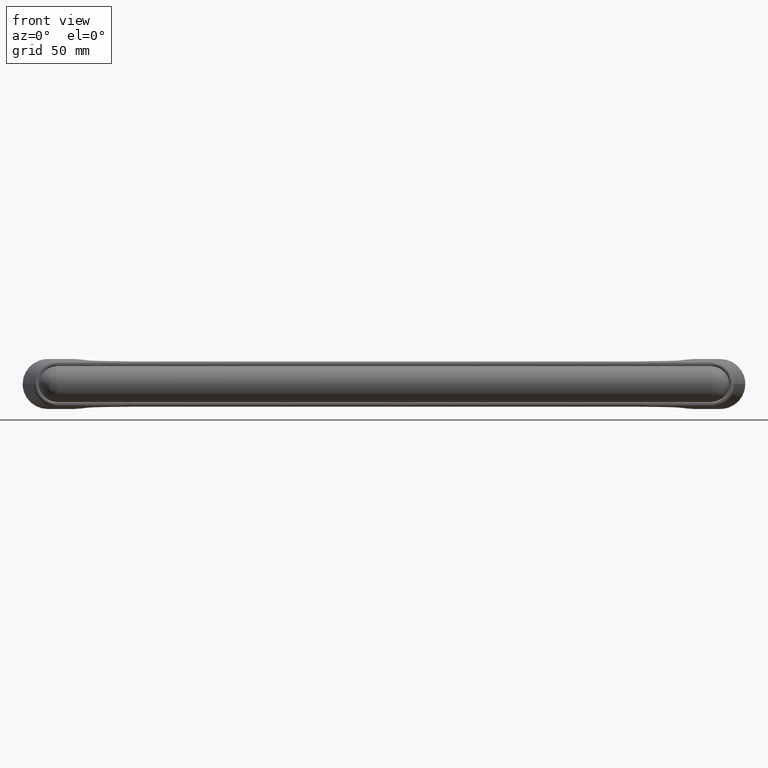
[diagram: clean part render]
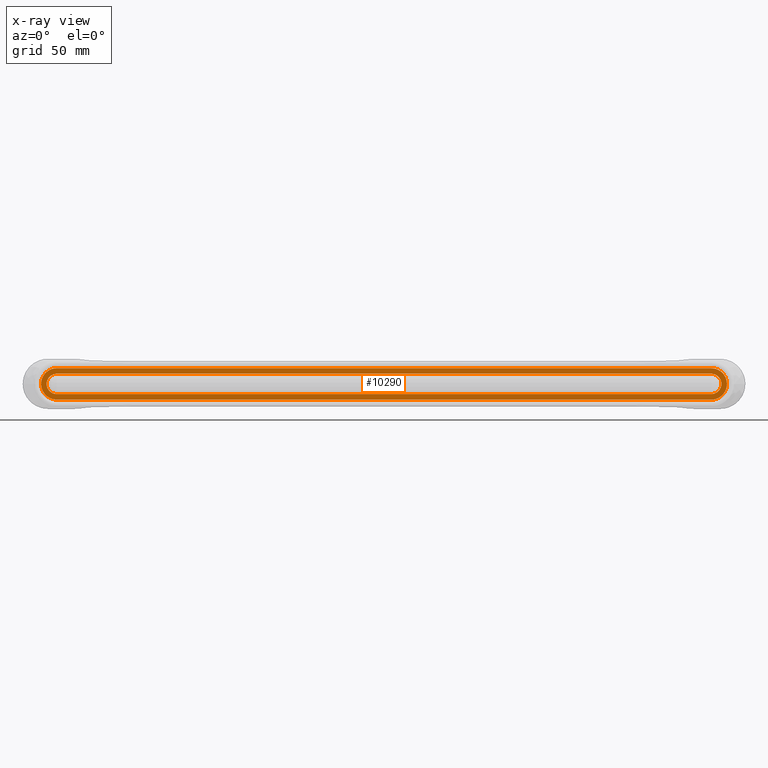
[diagram: x-ray — body ghosted, one internal face saturated and labeled with its STEP entity id]
A machine part, front view, then the same camera in x-ray: the body is ghosted and one INTERNAL B-rep face — a face not visible from any outside direction — is saturated and labeled: STEP entity #10290.
In plain terms, the highlighted face is a freeform B-spline surface patch.
Its self-contained STEP definition (entity closure, byte-faithful):
#10071=CARTESIAN_POINT('',(144.0,4.472135954999660,-12.0));
#10072=VERTEX_POINT('',#10071);
#10088=CARTESIAN_POINT('',(144.0,-4.472135954999605,-12.0));
#10089=VERTEX_POINT('',#10088);
#10090=CARTESIAN_POINT('',(144.0,4.472135954999793,-12.0));
#10091=CARTESIAN_POINT('',(148.472135954999690,4.472135954999793,-12.0));
#10092=CARTESIAN_POINT('',(148.472135954999690,3.253905E-014,-12.0));
#10093=CARTESIAN_POINT('',(148.472135954999690,-4.472135954999726,-12.0));
#10094=CARTESIAN_POINT('',(144.0,-4.472135954999727,-12.0));
#10102=(BOUNDED_CURVE()B_SPLINE_CURVE(2,(#10090,#10091,#10092,#10093,#10094),.UNSPECIFIED.,.F.,.U.)B_SPLINE_CURVE_WITH_KNOTS((3,2,3),(0.0,0.500000000000000,1.0),.UNSPECIFIED.)CURVE()GEOMETRIC_REPRESENTATION_ITEM()RATIONAL_B_SPLINE_CURVE((1.0,0.707106781186547,1.0,0.707106781186547,1.0))REPRESENTATION_ITEM(''));
#10103=EDGE_CURVE('',#10072,#10089,#10102,.T.);
#10169=CARTESIAN_POINT('',(-144.0,-4.472135954999585,-12.0));
#10170=VERTEX_POINT('',#10169);
#10186=CARTESIAN_POINT('',(-144.0,4.472135954999625,-12.0));
#10187=VERTEX_POINT('',#10186);
#10188=CARTESIAN_POINT('',(-144.0,-4.472135954999780,-12.0));
#10189=CARTESIAN_POINT('',(-148.472135954999690,-4.472135954999780,-12.0));
#10190=CARTESIAN_POINT('',(-148.472135954999690,-2.036395E-014,-12.0));
#10191=CARTESIAN_POINT('',(-148.472135954999690,4.472135954999741,-12.0));
#10192=CARTESIAN_POINT('',(-144.0,4.472135954999740,-12.0));
#10200=(BOUNDED_CURVE()B_SPLINE_CURVE(2,(#10188,#10189,#10190,#10191,#10192),.UNSPECIFIED.,.F.,.U.)B_SPLINE_CURVE_WITH_KNOTS((3,2,3),(0.0,0.500000000000000,1.0),.UNSPECIFIED.)CURVE()GEOMETRIC_REPRESENTATION_ITEM()RATIONAL_B_SPLINE_CURVE((1.0,0.707106781186547,1.0,0.707106781186547,1.0))REPRESENTATION_ITEM(''));
#10201=EDGE_CURVE('',#10170,#10187,#10200,.T.);
#10221=CARTESIAN_POINT('',(165.964196494235410,-7.620330576049575,-12.0));
#10222=CARTESIAN_POINT('',(-165.964191096622190,-7.620330576049575,-12.0));
#10223=CARTESIAN_POINT('',(165.964196494235410,7.620331071593284,-12.0));
#10224=CARTESIAN_POINT('',(-165.964191096622190,7.620331071593284,-12.0));
#10225=B_SPLINE_SURFACE_WITH_KNOTS('',1,1,((#10221,#10223),(#10222,#10224)),.UNSPECIFIED.,.F.,.F.,.U.,(2,2),(2,2),(0.0,331.928387590857600),(0.0,15.240661647642860),.UNSPECIFIED.);
#10226=CARTESIAN_POINT('',(144.0,6.928203230275400,-12.0));
#10227=VERTEX_POINT('',#10226);
#10228=CARTESIAN_POINT('',(144.0,-6.928203230275360,-12.0));
#10229=VERTEX_POINT('',#10228);
#10230=CARTESIAN_POINT('',(144.0,6.928203230275653,-12.0));
#10231=CARTESIAN_POINT('',(150.928203230275670,6.928203230275653,-12.0));
#10232=CARTESIAN_POINT('',(150.928203230275610,3.253905E-014,-12.0));
#10233=CARTESIAN_POINT('',(150.928203230275670,-6.928203230275587,-12.0));
#10234=CARTESIAN_POINT('',(144.0,-6.928203230275587,-12.0));
#10242=(BOUNDED_CURVE()B_SPLINE_CURVE(2,(#10230,#10231,#10232,#10233,#10234),.UNSPECIFIED.,.F.,.U.)B_SPLINE_CURVE_WITH_KNOTS((3,2,3),(0.0,0.500000000000000,1.0),.UNSPECIFIED.)CURVE()GEOMETRIC_REPRESENTATION_ITEM()RATIONAL_B_SPLINE_CURVE((1.0,0.707106781186547,1.0,0.707106781186547,1.0))REPRESENTATION_ITEM(''));
#10243=EDGE_CURVE('',#10227,#10229,#10242,.T.);
#10244=ORIENTED_EDGE('',*,*,#10243,.T.);
#10245=CARTESIAN_POINT('',(-144.0,-6.928203230275489,-12.0));
#10246=VERTEX_POINT('',#10245);
#10247=CARTESIAN_POINT('',(144.0,-6.928203230275360,-12.0));
#10248=CARTESIAN_POINT('',(-144.0,-6.928203230275489,-12.0));
#10249=QUASI_UNIFORM_CURVE('',1,(#10247,#10248),.UNSPECIFIED.,.F.,.U.);
#10250=EDGE_CURVE('',#10229,#10246,#10249,.T.);
#10251=ORIENTED_EDGE('',*,*,#10250,.T.);
#10252=CARTESIAN_POINT('',(-144.0,6.928203230275489,-12.0));
#10253=VERTEX_POINT('',#10252);
#10254=CARTESIAN_POINT('',(-144.0,-6.928203230275639,-12.0));
#10255=CARTESIAN_POINT('',(-150.928203230275670,-6.928203230275638,-12.0));
#10256=CARTESIAN_POINT('',(-150.928203230275610,-2.036395E-014,-12.0));
#10257=CARTESIAN_POINT('',(-150.928203230275670,6.928203230275599,-12.0));
#10258=CARTESIAN_POINT('',(-144.0,6.928203230275599,-12.0));
#10266=(BOUNDED_CURVE()B_SPLINE_CURVE(2,(#10254,#10255,#10256,#10257,#10258),.UNSPECIFIED.,.F.,.U.)B_SPLINE_CURVE_WITH_KNOTS((3,2,3),(0.0,0.500000000000000,1.0),.UNSPECIFIED.)CURVE()GEOMETRIC_REPRESENTATION_ITEM()RATIONAL_B_SPLINE_CURVE((1.0,0.707106781186547,1.0,0.707106781186547,1.0))REPRESENTATION_ITEM(''));
#10267=EDGE_CURVE('',#10246,#10253,#10266,.T.);
#10268=ORIENTED_EDGE('',*,*,#10267,.T.);
#10269=CARTESIAN_POINT('',(-144.0,6.928203230275489,-12.0));
#10270=CARTESIAN_POINT('',(144.0,6.928203230275400,-12.0));
#10271=QUASI_UNIFORM_CURVE('',1,(#10269,#10270),.UNSPECIFIED.,.F.,.U.);
#10272=EDGE_CURVE('',#10253,#10227,#10271,.T.);
#10273=ORIENTED_EDGE('',*,*,#10272,.T.);
#10274=EDGE_LOOP('',(#10244,#10251,#10268,#10273));
#10275=FACE_OUTER_BOUND('',#10274,.T.);
#10276=CARTESIAN_POINT('',(144.0,4.472135954999660,-12.0));
#10277=CARTESIAN_POINT('',(-144.0,4.472135954999625,-12.0));
#10278=QUASI_UNIFORM_CURVE('',1,(#10276,#10277),.UNSPECIFIED.,.F.,.U.);
#10279=EDGE_CURVE('',#10072,#10187,#10278,.T.);
#10280=ORIENTED_EDGE('',*,*,#10279,.T.);
#10281=ORIENTED_EDGE('',*,*,#10201,.F.);
#10282=CARTESIAN_POINT('',(-144.0,-4.472135954999585,-12.0));
#10283=CARTESIAN_POINT('',(144.0,-4.472135954999605,-12.0));
#10284=QUASI_UNIFORM_CURVE('',1,(#10282,#10283),.UNSPECIFIED.,.F.,.U.);
#10285=EDGE_CURVE('',#10170,#10089,#10284,.T.);
#10286=ORIENTED_EDGE('',*,*,#10285,.T.);
#10287=ORIENTED_EDGE('',*,*,#10103,.F.);
#10288=EDGE_LOOP('',(#10280,#10281,#10286,#10287));
#10289=FACE_BOUND('',#10288,.T.);
#10290=ADVANCED_FACE('',(#10275,#10289),#10225,.T.);